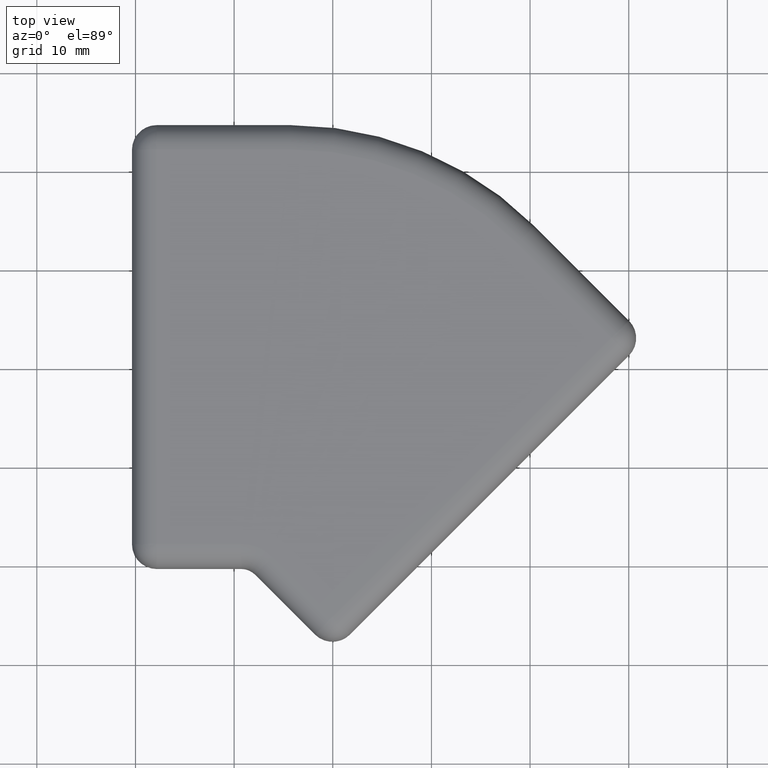
[diagram: clean part render]
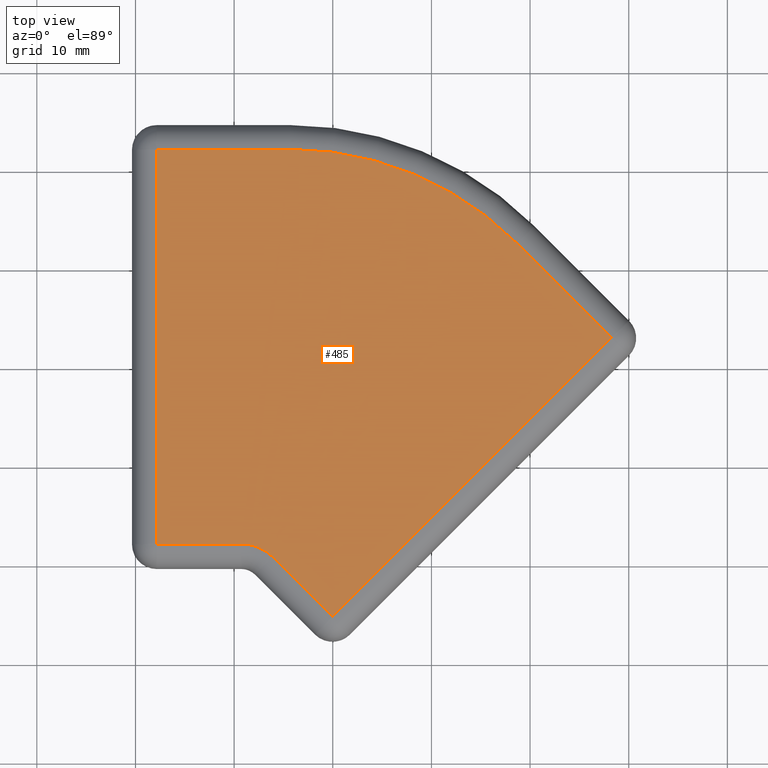
[diagram: same view with one face highlighted and labeled with its STEP entity id]
A machine part, top view. The second image highlights one B-rep face of the part: STEP entity #485.
In plain terms, the highlighted planar face has unit normal (0, 0, 1).
Its self-contained STEP definition (entity closure, byte-faithful):
#37=PLANE('',#579);
#85=FACE_OUTER_BOUND('',#127,.T.);
#127=EDGE_LOOP('',(#440,#441,#442,#443,#444,#445,#446,#447));
#147=LINE('',#856,#171);
#148=LINE('',#862,#172);
#149=LINE('',#870,#173);
#150=LINE('',#874,#174);
#151=LINE('',#880,#175);
#152=LINE('',#887,#176);
#171=VECTOR('',#697,10.);
#172=VECTOR('',#704,10.);
#173=VECTOR('',#717,10.);
#174=VECTOR('',#722,10.);
#175=VECTOR('',#731,10.);
#176=VECTOR('',#742,10.);
#208=CIRCLE('',#561,4.5);
#214=CIRCLE('',#572,32.5);
#249=VERTEX_POINT('',#853);
#250=VERTEX_POINT('',#855);
#251=VERTEX_POINT('',#859);
#252=VERTEX_POINT('',#861);
#253=VERTEX_POINT('',#865);
#254=VERTEX_POINT('',#873);
#255=VERTEX_POINT('',#879);
#256=VERTEX_POINT('',#883);
#302=EDGE_CURVE('',#249,#250,#147,.T.);
#305=EDGE_CURVE('',#251,#252,#148,.T.);
#308=EDGE_CURVE('',#253,#251,#208,.T.);
#310=EDGE_CURVE('',#250,#253,#149,.T.);
#312=EDGE_CURVE('',#252,#254,#150,.T.);
#315=EDGE_CURVE('',#254,#255,#151,.T.);
#317=EDGE_CURVE('',#255,#256,#214,.T.);
#319=EDGE_CURVE('',#256,#249,#152,.T.);
#440=ORIENTED_EDGE('',*,*,#305,.F.);
#441=ORIENTED_EDGE('',*,*,#308,.F.);
#442=ORIENTED_EDGE('',*,*,#310,.F.);
#443=ORIENTED_EDGE('',*,*,#302,.F.);
#444=ORIENTED_EDGE('',*,*,#319,.F.);
#445=ORIENTED_EDGE('',*,*,#317,.F.);
#446=ORIENTED_EDGE('',*,*,#315,.F.);
#447=ORIENTED_EDGE('',*,*,#312,.F.);
#485=ADVANCED_FACE('',(#85),#37,.T.);
#561=AXIS2_PLACEMENT_3D('',#867,#711,#712);
#572=AXIS2_PLACEMENT_3D('',#884,#736,#737);
#579=AXIS2_PLACEMENT_3D('',#892,#751,#752);
#697=DIRECTION('',(-0.707106781194539,-0.707106781178556,0.));
#704=DIRECTION('',(-1.,-1.82235322564765E-12,0.));
#711=DIRECTION('center_axis',(0.,0.,1.));
#712=DIRECTION('ref_axis',(0.382683432369484,0.923879532509467,0.));
#717=DIRECTION('',(-0.707106781178558,0.707106781194537,0.));
#722=DIRECTION('',(-1.79927757281055E-12,1.,0.));
#731=DIRECTION('',(1.,1.81589351842762E-12,0.));
#736=DIRECTION('center_axis',(0.,0.,-1.));
#737=DIRECTION('ref_axis',(0.382683432369477,0.92387953250947,0.));
#742=DIRECTION('',(0.707106781178559,-0.707106781194536,0.));
#751=DIRECTION('center_axis',(0.,0.,1.));
#752=DIRECTION('ref_axis',(1.,0.,0.));
#853=CARTESIAN_POINT('',(28.2550526365075,3.00487995841696,2.5));
#855=CARTESIAN_POINT('',(-0.0292186112741888,-25.2793912887252,2.5));
#856=CARTESIAN_POINT('',(15.756940541969,-9.49323213583888,2.5));
#859=CARTESIAN_POINT('',(-9.27668124803987,-17.8958896825095,2.5));
#861=CARTESIAN_POINT('',(-17.854568326527,-17.8958896825251,2.5));
#862=CARTESIAN_POINT('',(0.657224516953312,-17.8958896824914,2.5));
#865=CARTESIAN_POINT('',(-6.0947007326562,-19.213909167206,2.5));
#867=CARTESIAN_POINT('Origin',(-9.27668124803169,-22.3958896825095,2.5));
#870=CARTESIAN_POINT('',(-1.79011223968766,-23.5184976602719,2.5));
#873=CARTESIAN_POINT('',(-17.854568326599,22.1041103174749,2.5));
#874=CARTESIAN_POINT('',(-17.8545683265501,-5.08067878233761,2.5));
#879=CARTESIAN_POINT('',(-4.30611849954272,22.1041103174995,2.5));
#880=CARTESIAN_POINT('',(-3.63171902236266,22.1041103175007,2.5));
#883=CARTESIAN_POINT('',(18.6748518893384,12.5850807058026,2.5));
#884=CARTESIAN_POINT('Origin',(-4.30611849948413,-10.3958896825005,2.5));
#887=CARTESIAN_POINT('',(21.7040586345093,9.5558739605632,2.5));
#892=CARTESIAN_POINT('Origin',(10.5911302819278,-7.61546788210902,2.5));